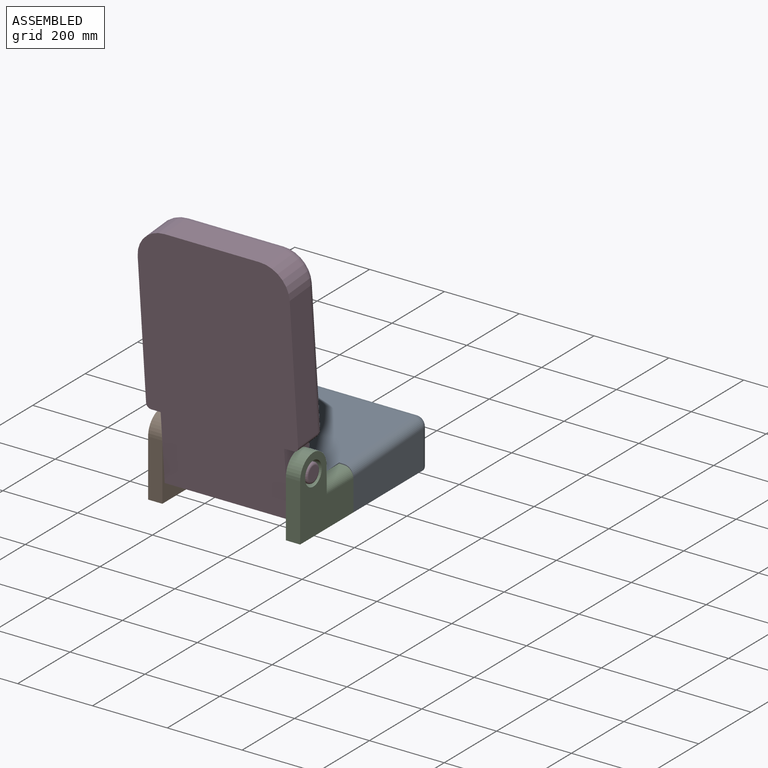
[diagram: assembled view]
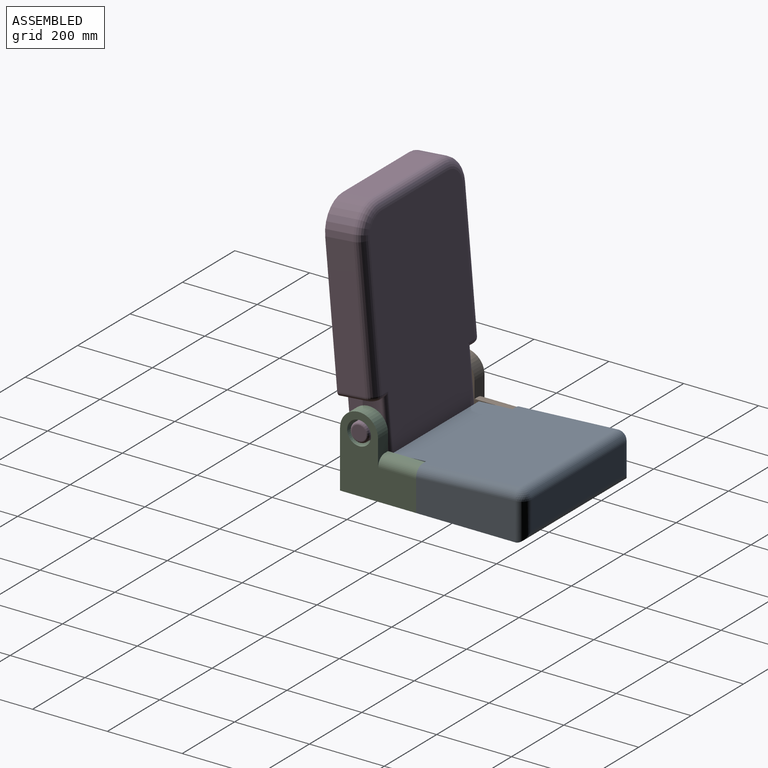
[diagram: assembled view, second angle]
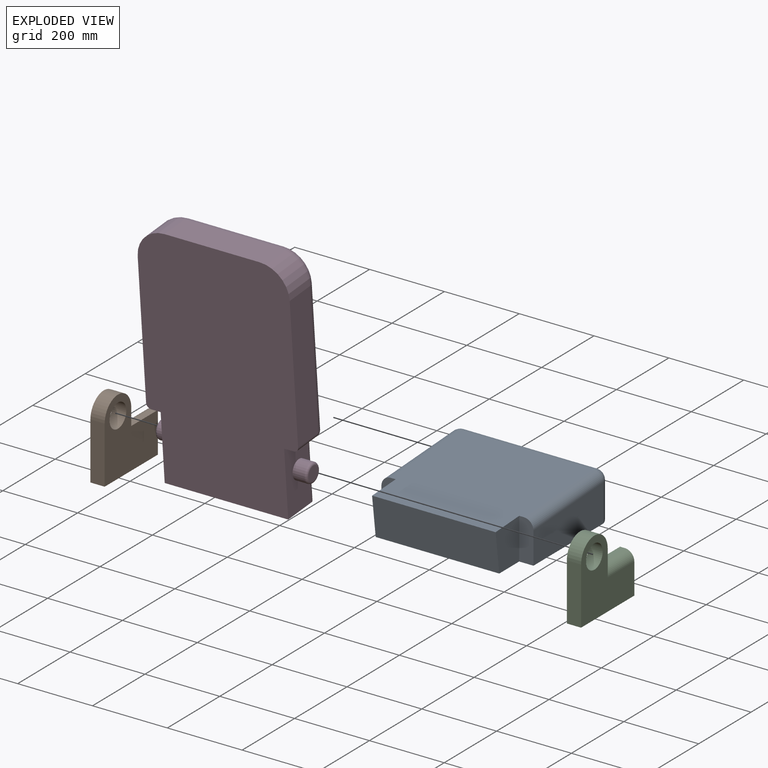
[diagram: exploded view]
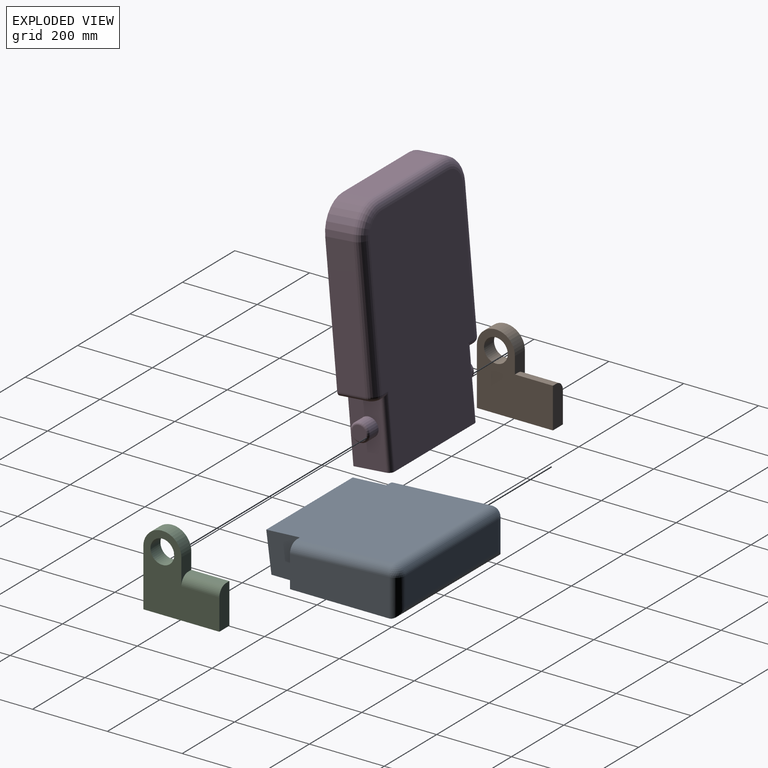
[diagram: exploded view, second angle]
ASSEMBLY  parts=4 mates=8
PART A: 18 faces, bbox 406.4x380.4x125.5 mm
  f0: plane 406.4x341.12mm, normal (0,0,-1), area 132823.2mm2, adj f1,f2,f6,f13,f14,f15,f16,f17
  f1: plane 330.2x105.15mm, normal (0,0.99,-0.13), area 35022.1mm2, adj f0,f5,f15,f17
  f2: plane 264.92x100.1mm, normal (-1,0,0), area 24502.6mm2, adj f0,f3,f12,f14
  f3: cylinder r=25.4mm len=266.37mm, axis (0,-1,0.06), area 10550.1mm2, adj f2,f5,f10,f14
  f4: plane 355.6x74.7mm, normal (0,-1,0), area 26563.1mm2, adj f8,f11,f12,f13
  f5: plane 355.6x353.52mm, normal (0,0.06,1), area 123626.5mm2, adj f1,f3,f7,f8,f14,f15,f16,f17
  f6: plane 264.92x100.1mm, normal (1,0,0), area 24502.6mm2, adj f0,f7,f11,f16
  f7: cylinder r=25.4mm len=266.37mm, axis (0,1,-0.06), area 10550.1mm2, adj f5,f6,f9,f16
  f8: cylinder r=25.4mm len=355.6mm, axis (-1,0,0), area 14706mm2, adj f4,f5,f9,f10
  f9: sphere r=25.4mm, area 1050.5mm2, adj f7,f8,f11
  f10: sphere r=25.4mm, area 1050.5mm2, adj f3,f8,f12
  f11: cylinder r=25.4mm len=100.1mm, axis (0,0,1), area 3625.5mm2, adj f4,f6,f9,f13
  f12: cylinder r=25.4mm len=100.1mm, axis (0,0,-1), area 3625.5mm2, adj f2,f4,f10,f13
  f13: cylinder r=25.4mm len=406.4mm, axis (-1,0,0), area 15478.1mm2, adj f0,f4,f11,f12
  f14: plane 110.33x38.1mm, normal (0,1,0), area 4064.8mm2, adj f0,f2,f3,f5,f15
  f15: plane 110.33x90.06mm, normal (-1,0,0), area 8974.2mm2, adj f0,f1,f5,f14
  f16: plane 110.33x38.1mm, normal (0,1,0), area 4064.8mm2, adj f0,f5,f6,f7,f17
  f17: plane 110.33x90.06mm, normal (1,0,0), area 8974.2mm2, adj f0,f1,f5,f16
PART B: 10 faces, bbox 203.2x38.1x203.2 mm
  f0: plane 101.6x12.7mm, normal (0,0,1), area 1290.3mm2, adj f1,f5,f6,f8
  f1: plane 69.85x38.1mm, normal (1,0,0), area 1832mm2, adj f0,f2,f6,f7,f8
  f2: cylinder r=50.8mm len=101.6mm, axis (0,1,0), area 6080.5mm2, adj f1,f3,f6,f7
  f3: plane 152.4x38.1mm, normal (-1,0,0), area 5806.4mm2, adj f2,f4,f6,f7
  f4: plane 203.2x38.1mm, normal (0,0,-1), area 7741.9mm2, adj f3,f5,f6,f7
  f5: plane 107.95x38.1mm, normal (1,0,0), area 3974.4mm2, adj f0,f4,f6,f7,f8
  f6: plane 203.2x203.2mm, normal (0,-1,0), area 27338.3mm2, adj f0,f1,f2,f3,f4,f5,f9
  f7: plane 203.2x203.2mm, normal (0,1,0), area 24757.7mm2, adj f1,f2,f3,f4,f5,f8,f9
  f8: cylinder r=25.4mm len=101.6mm, axis (-1,0,0), area 4053.7mm2, adj f0,f1,f5,f7
  f9: cylinder r=31.75mm len=63.5mm, axis (0,-1,0), area 7600.6mm2, adj f6,f7
PART C: 10 faces, bbox 203.2x38.1x203.2 mm
  f0: plane 101.6x12.7mm, normal (0,0,1), area 1290.3mm2, adj f1,f5,f7,f8
  f1: plane 69.85x38.1mm, normal (1,0,0), area 1832mm2, adj f0,f2,f6,f7,f8
  f2: cylinder r=50.8mm len=101.6mm, axis (0,1,0), area 6080.5mm2, adj f1,f3,f6,f7
  f3: plane 152.4x38.1mm, normal (-1,0,0), area 5806.4mm2, adj f2,f4,f6,f7
  f4: plane 203.2x38.1mm, normal (0,0,-1), area 7741.9mm2, adj f3,f5,f6,f7
  f5: plane 107.95x38.1mm, normal (1,0,0), area 3974.4mm2, adj f0,f4,f6,f7,f8
  f6: plane 203.2x203.2mm, normal (0,-1,0), area 24757.7mm2, adj f1,f2,f3,f4,f5,f8,f9
  f7: plane 203.2x203.2mm, normal (0,1,0), area 27338.3mm2, adj f0,f1,f2,f3,f4,f5,f9
  f8: cylinder r=25.4mm len=101.6mm, axis (1,0,0), area 4053.7mm2, adj f0,f1,f5,f6
  f9: cylinder r=31.75mm len=63.5mm, axis (0,-1,0), area 7600.6mm2, adj f6,f7
PART D: 31 faces, bbox 419x103.7x641.3 mm
  f0: plane 635x406.4mm, normal (0,-1,0), area 241954.3mm2, adj f1,f3,f4,f5,f6,f7,f8,f9
  f1: plane 368.3x76.2mm, normal (1,0,0), area 28064.5mm2, adj f0,f10,f15,f25
  f2: plane 609.6x355.6mm, normal (0,1,0), area 205988.7mm2, adj f4,f12,f13,f14,f15,f16,f23,f24
  f3: plane 368.3x76.2mm, normal (-1,0,0), area 28064.5mm2, adj f0,f11,f12,f28
  f4: plane 330.2x101.6mm, normal (0,0,-1), area 33479.1mm2, adj f0,f2,f6,f8,f23,f27
  f5: plane 254x76.2mm, normal (0,0,1), area 19354.8mm2, adj f0,f10,f11,f14
  f6: plane 177.8x88.9mm, normal (1,0,0), area 13779.6mm2, adj f0,f4,f7,f19,f23
  f7: plane 88.9x25.4mm, normal (0,0,-1), area 2223.4mm2, adj f0,f6,f24,f25,f26
  f8: plane 177.8x88.9mm, normal (-1,0,0), area 13779.6mm2, adj f0,f4,f9,f18,f27
  f9: plane 88.9x25.4mm, normal (0,0,-1), area 2223.4mm2, adj f0,f8,f28,f29,f30
  f10: cylinder r=76.2mm len=76.2mm, axis (0,1,0), area 9120.7mm2, adj f0,f1,f5,f16
  f11: cylinder r=76.2mm len=76.2mm, axis (0,-1,0), area 9120.7mm2, adj f0,f3,f5,f13
  f12: cylinder r=25.4mm len=368.3mm, axis (0,0,-1), area 14694.5mm2, adj f2,f3,f13,f30
  f13: torus R=50.8mm, axis (0,-1,0), area 4197.2mm2, adj f2,f11,f12,f14
  f14: cylinder r=25.4mm len=254mm, axis (-1,0,0), area 10134.1mm2, adj f2,f5,f13,f16
  f15: cylinder r=25.4mm len=368.3mm, axis (0,0,1), area 14694.5mm2, adj f1,f2,f16,f26
  f16: torus R=50.8mm, axis (0,-1,0), area 4197.2mm2, adj f2,f10,f14,f15
  f17: plane 38.1x38.1mm, normal (-1,0,0), area 1140.1mm2, adj f22
  f18: cylinder r=25.4mm len=50.8mm, axis (1,0,0), area 5067.1mm2, adj f8,f22
  f19: cylinder r=25.4mm len=50.8mm, axis (1,0,0), area 5067.1mm2, adj f6,f21
  f20: plane 38.1x38.1mm, normal (1,0,0), area 1140.1mm2, adj f21
  f21: torus R=19.05mm, axis (1,0,0), area 1447.3mm2, adj f19,f20
  f22: torus R=19.05mm, axis (1,0,0), area 1447.3mm2, adj f17,f18
  f23: cylinder r=12.7mm len=190.5mm, axis (0,0,-1), area 3639mm2, adj f2,f4,f6,f24
  f24: cylinder r=12.7mm len=25.4mm, axis (-1,0,0), area 345.4mm2, adj f2,f7,f23,f26
  f25: cylinder r=12.7mm len=76.2mm, axis (0,1,0), area 1520.1mm2, adj f0,f1,f7,f26
  f26: torus R=12.7mm, axis (0,0,-1), area 651.3mm2, adj f7,f15,f24,f25
  f27: cylinder r=12.7mm len=190.5mm, axis (0,0,1), area 3639mm2, adj f2,f4,f8,f29
  f28: cylinder r=12.7mm len=76.2mm, axis (0,-1,0), area 1520.1mm2, adj f0,f3,f9,f30
  f29: cylinder r=12.7mm len=25.4mm, axis (-1,0,0), area 345.4mm2, adj f2,f9,f27,f30
  f30: torus R=12.7mm, axis (0,0,1), area 651.3mm2, adj f9,f12,f28,f29
PLACE A rot(axis=(0,0,-1),180deg) t=(311.09,359.63,117.82)mm
PLACE B rot(axis=(0,0,1),90deg) t=(-95.31,248.73,141.72)mm
PLACE C rot(axis=(0,0,1),90deg) t=(272.99,248.73,141.72)mm
PLACE D rot(axis=(1,0,0),5deg) t=(112.14,210.54,327.37)mm
MATE planar D.f8 <-> B.f6  axis (-1,0,0) through (-57.21,164.34,188.97)mm
MATE planar C.f5 <-> A.f14  axis (0,1,0) through (292.04,322.73,51.72)mm
MATE planar A.f0 <-> C.f4  axis (0,0,-1) through (107.89,422.88,51.72)mm
MATE planar B.f6 <-> A.f17  axis (1,0,0) through (-57.21,322.73,159.67)mm
MATE planar A.f15 <-> C.f7  axis (1,0,0) through (272.99,281.37,107.12)mm
MATE cylindrical C.f2 <-> D.f21  axis (1,0,0) through (311.09,170.33,204.12)mm
MATE cylindrical B.f2 <-> D.f21  axis (-1,0,0) through (-95.31,170.33,204.12)mm
MATE planar B.f4 <-> A.f0  axis (0,0,-1) through (-76.26,221.13,51.72)mm
